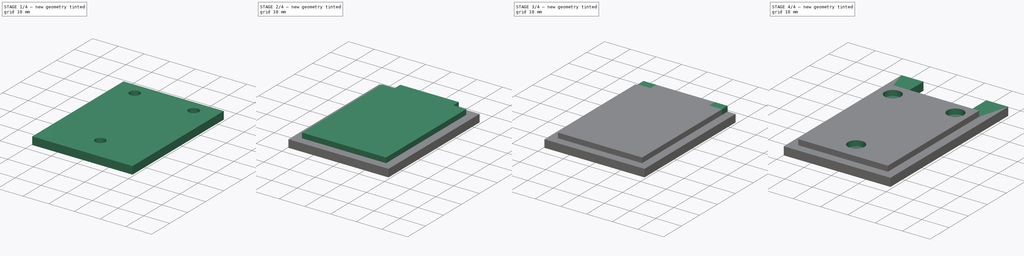
[diagram: build sequence overview — one tinted view per stage of 4, left to right]
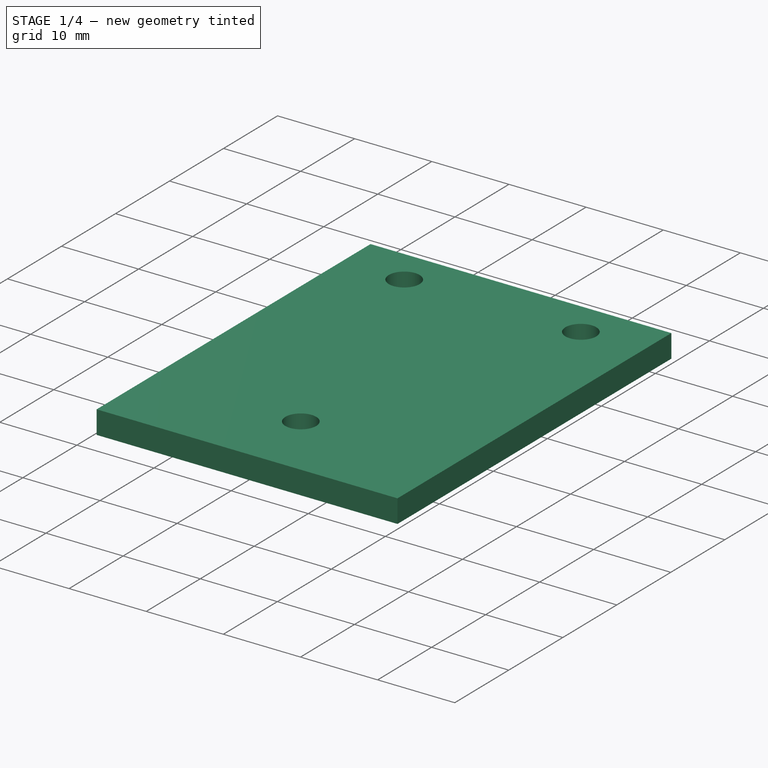
[diagram: stage 1 of 4 — iso view after this stage's code; geometry added in this stage tinted green]
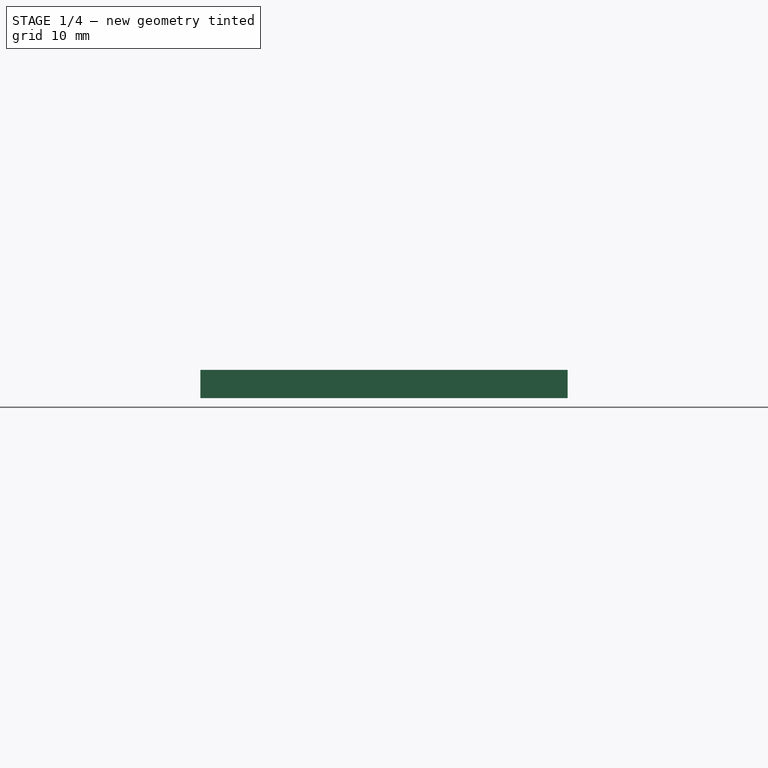
[diagram: stage 1 of 4 — front view after this stage's code; geometry added in this stage tinted green]
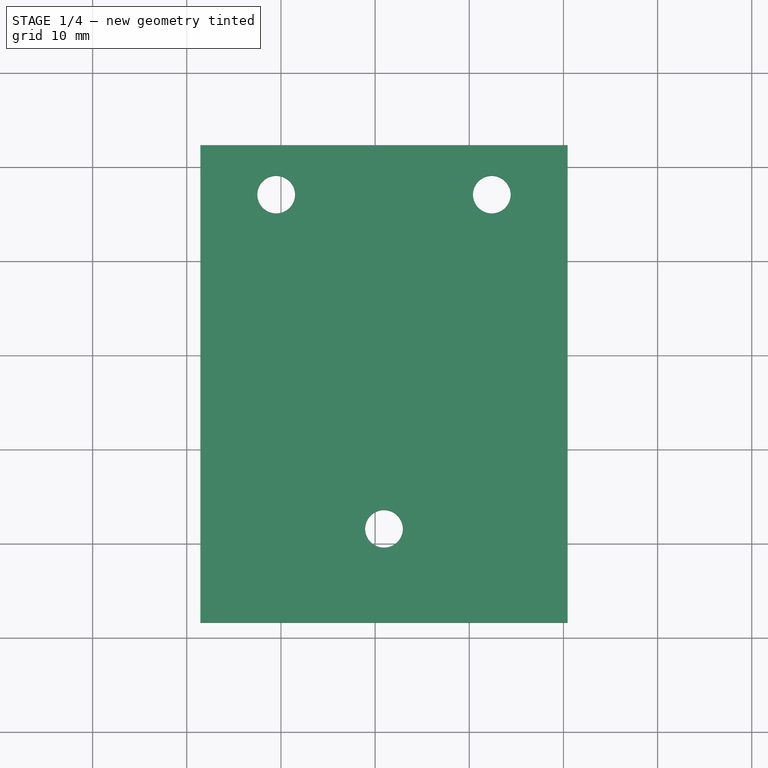
[diagram: stage 1 of 4 — top view after this stage's code; geometry added in this stage tinted green]
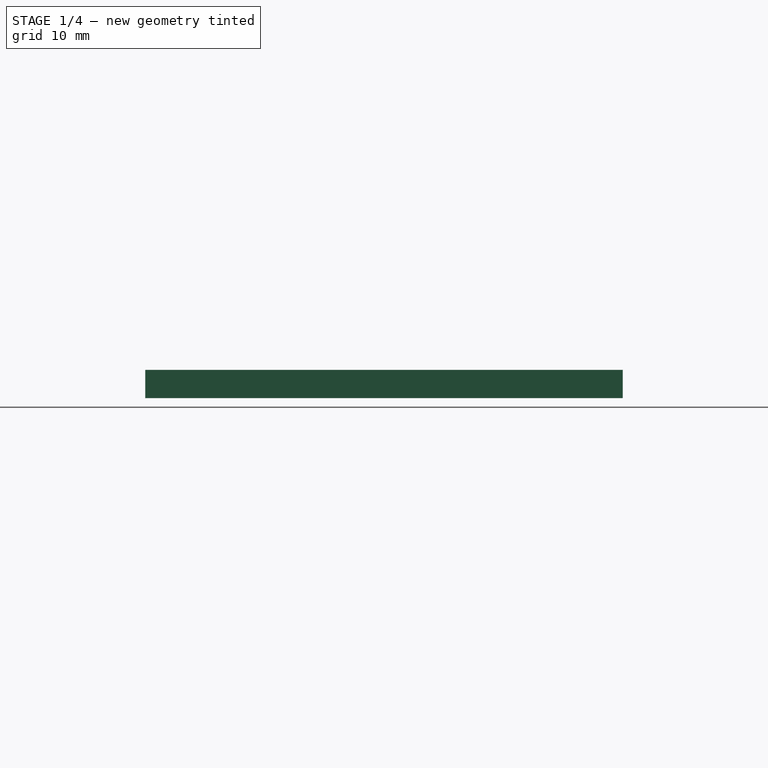
[diagram: stage 1 of 4 — right view after this stage's code; geometry added in this stage tinted green]
FCSTD DOCUMENT  (FreeCAD 0.18.4R)
Label: 12v_stepper_case_lid
License: All rights reserved
LicenseURL: http://en.wikipedia.org/wiki/All_rights_reserved
objects: Sketcher::SketchObject×7, PartDesign::Pad×6, PartDesign::Pocket×6, App::MeasureDistance×4, Part::Part2DObjectPython×1, PartDesign::Body×1
note: 33 computed .brp shape members not serialized (recipe doc carries the construction recipe); baked Part::Feature solids carry a one-line shape summary decoded from their .brp

FEATURE [Sketcher::SketchObject] Sketch
  MapMode = 5
  Support = -> [XY_Plane]
  sketch-geometry (4):
    g0: LineSegment StartX=-8.55599 StartY=-8.38801 StartZ=0 EndX=30.444 EndY=-8.38801 EndZ=0
    g1: LineSegment StartX=30.444 StartY=-8.38801 StartZ=0 EndX=30.444 EndY=42.312 EndZ=0
    g2: LineSegment StartX=30.444 StartY=42.312 StartZ=0 EndX=-8.55599 EndY=42.312 EndZ=0
    g3: LineSegment StartX=-8.55599 StartY=42.312 StartZ=0 EndX=-8.55599 EndY=-8.38801 EndZ=0
  constraints (10):
    c: Coincident(g0,g1)
    c: Coincident(g1,g2)
    c: Coincident(g2,g3)
    c: Coincident(g3,g0)
    c: Horizontal(g0)
    c: Horizontal(g2)
    c: Vertical(g1)
    c: Vertical(g3)
    c: Distance(g2) = 39
    c: Distance(g1) = 50.7
FEATURE [PartDesign::Pad] Pad
  Length = 3
  Length2 = 100
  Profile = -> Sketch
  Type = 0
FEATURE [Sketcher::SketchObject] Sketch001
  ExternalGeometry = -> [Pad]
  MapMode = 5
  Placement = pos=(0,0,0) rot=(1,0,0;3.14159rad)
  Support = -> [Pad]
  sketch-geometry (3):
    g0: Circle CenterX=10.944 CenterY=-1.56199 CenterZ=0 NormalX=0 NormalY=0 NormalZ=1 AngleXU=0 Radius=2
    g1: Circle CenterX=22.394 CenterY=-37.062 CenterZ=0 NormalX=0 NormalY=0 NormalZ=1 AngleXU=0 Radius=2
    g2: Circle CenterX=-0.505992 CenterY=-37.062 CenterZ=0 NormalX=0 NormalY=0 NormalZ=1 AngleXU=0 Radius=2
  constraints (10):
    c: Radius(g0) = 2
    c: Radius(g1) = 2
    c: Radius(g2) = 2
    c: Distance(g0,g-3) = 9.95
    c: Distance(g0,g-4) = 19.5
    c: Distance(g1,g-6) = 8.05
    c: Distance(g2,g-4) = 8.05
    c: Distance(g2,g-5) = 5.25
    c: Distance(g1,g-5) = 5.25
    c: Distance(g-3) = 39
FEATURE [PartDesign::Pocket] Pocket
  BaseFeature = -> Pad
  Length = 5
  Length2 = 100
  Profile = -> Sketch001
  Type = 0
FEATURE [Sketcher::SketchObject] Sketch002
  ExternalGeometry = -> [Pocket]
  MapMode = 5
  Placement = pos=(0,0,0) rot=(1,0,0;3.14159rad)
  Support = -> [Pocket]
  sketch-geometry (3):
    g0: Circle CenterX=22.394 CenterY=-37.062 CenterZ=0 NormalX=0 NormalY=0 NormalZ=1 AngleXU=0 Radius=3
    g1: Circle CenterX=-0.505992 CenterY=-37.062 CenterZ=0 NormalX=0 NormalY=0 NormalZ=1 AngleXU=0 Radius=3
    g2: Circle CenterX=10.9445 CenterY=-1.56242 CenterZ=0 NormalX=0 NormalY=0 NormalZ=1 AngleXU=0 Radius=3
  constraints (3):
    c: Radius(g2) = 3
    c: Radius(g0) = 3
    c: Radius(g1) = 3
FEATURE [PartDesign::Pocket] Pocket001
  BaseFeature = -> Pocket
  Length = 1
  Length2 = 100
  Profile = -> Sketch002
  Type = 0
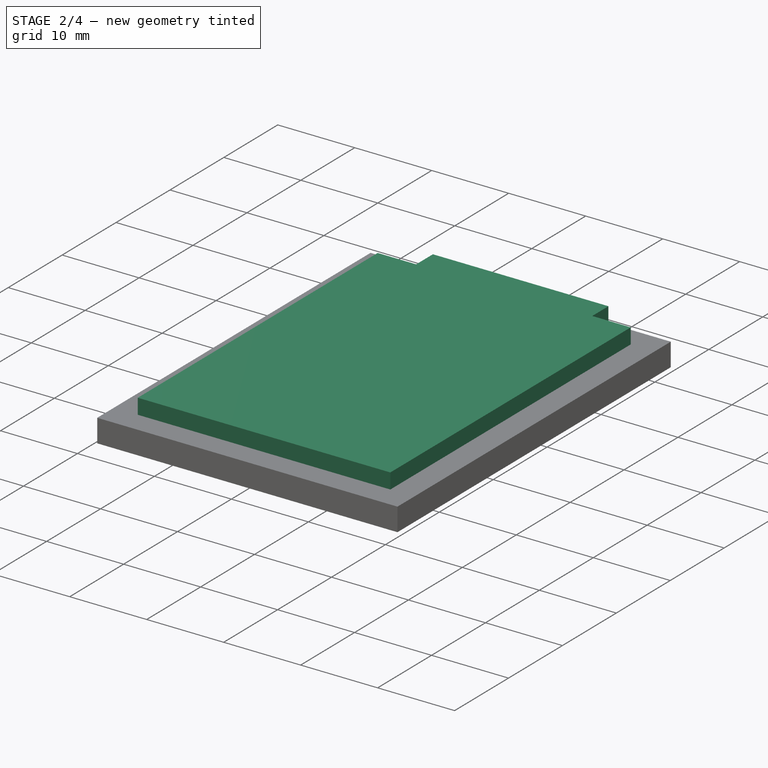
[diagram: stage 2 of 4 — iso view after this stage's code; geometry added in this stage tinted green]
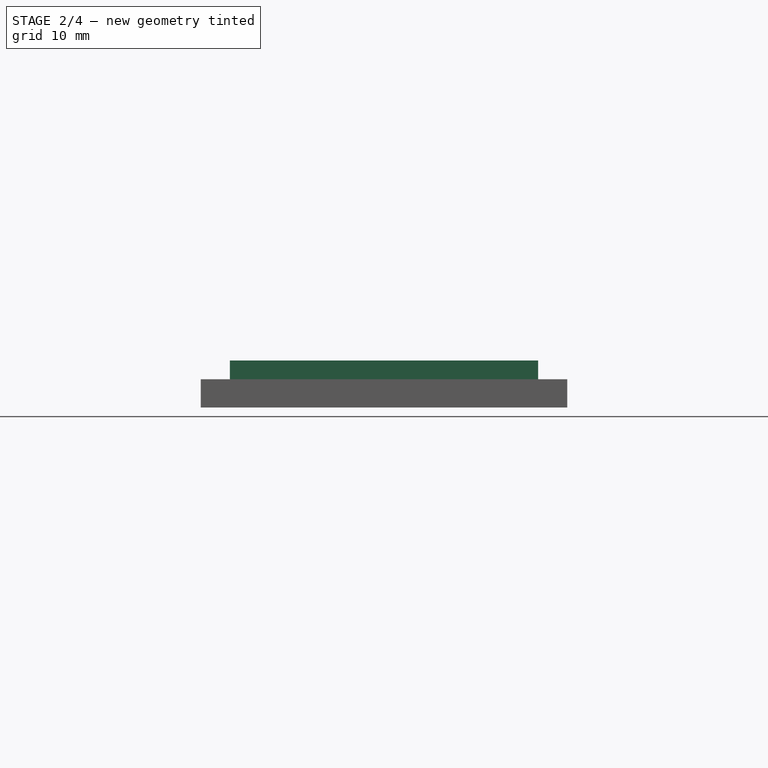
[diagram: stage 2 of 4 — front view after this stage's code; geometry added in this stage tinted green]
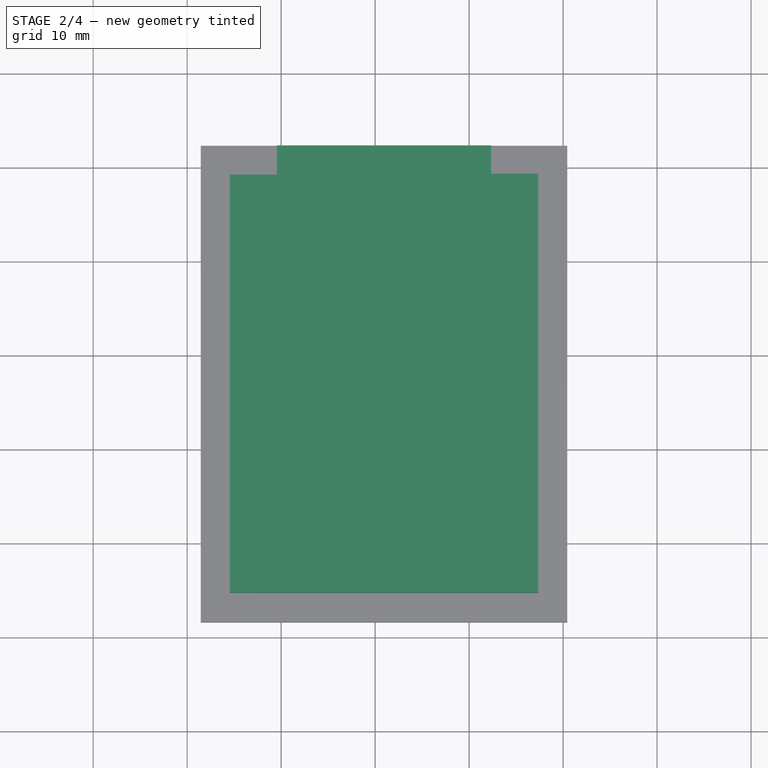
[diagram: stage 2 of 4 — top view after this stage's code; geometry added in this stage tinted green]
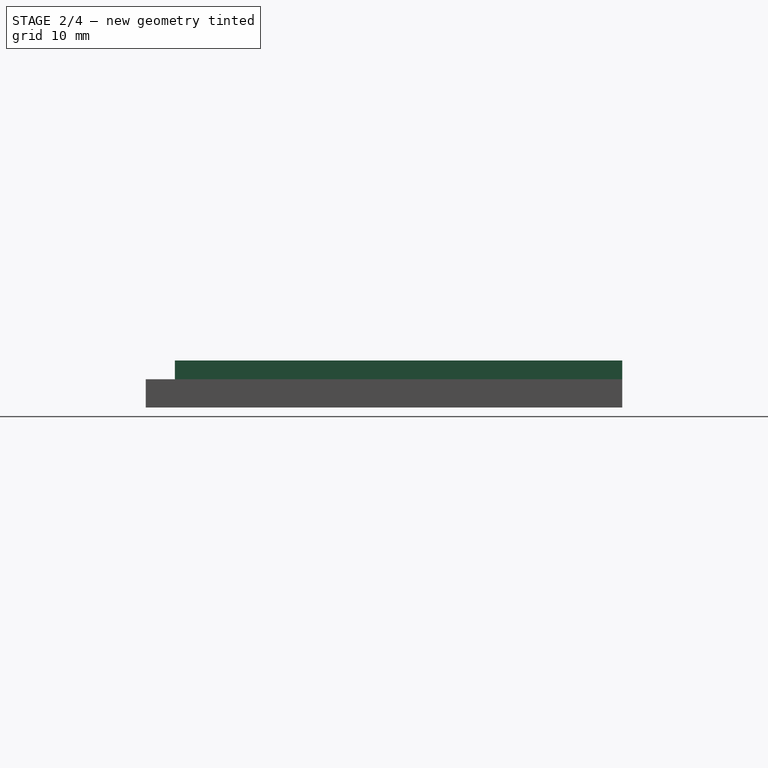
[diagram: stage 2 of 4 — right view after this stage's code; geometry added in this stage tinted green]
FEATURE [Sketcher::SketchObject] Sketch003
  ExternalGeometry = -> [Pocket001]
  MapMode = 5
  Placement = pos=(0,0,3) rot=(0,0,1;0rad)
  Support = -> [Pocket001]
  sketch-geometry (4):
    g0: LineSegment StartX=-0.455992 StartY=42.312 StartZ=0 EndX=22.344 EndY=42.312 EndZ=0
    g1: LineSegment StartX=22.344 StartY=42.312 StartZ=0 EndX=22.344 EndY=39.312 EndZ=0
    g2: LineSegment StartX=22.344 StartY=39.312 StartZ=0 EndX=-0.455992 EndY=39.312 EndZ=0
    g3: LineSegment StartX=-0.455992 StartY=39.312 StartZ=0 EndX=-0.455992 EndY=42.312 EndZ=0
  constraints (13):
    c: Coincident(g0,g1)
    c: Coincident(g1,g2)
    c: Coincident(g2,g3)
    c: Coincident(g3,g0)
    c: Horizontal(g0)
    c: Horizontal(g2)
    c: Vertical(g1)
    c: Vertical(g3)
    c: Distance(g1) = 3
    c: Distance(g0) = 22.8
    c: Distance(g-3) = 39
    c: Distance(g1,g-3) = 3
    c: Distance(g0,g-4) = 8.1
FEATURE [PartDesign::Pad] Pad001
  BaseFeature = -> Pocket001
  Length = 2
  Length2 = 100
  Profile = -> Sketch003
  Type = 0
FEATURE [Sketcher::SketchObject] Sketch004
  ExternalGeometry = -> [Pad001]
  MapMode = 5
  Placement = pos=(0,0,3) rot=(0,0,1;0rad)
  Support = -> [Pad001]
  sketch-geometry (4):
    g0: LineSegment StartX=-5.45599 StartY=39.312 StartZ=0 EndX=27.344 EndY=39.312 EndZ=0
    g1: LineSegment StartX=27.344 StartY=39.312 StartZ=0 EndX=27.344 EndY=-5.28801 EndZ=0
    g2: LineSegment StartX=27.344 StartY=-5.28801 StartZ=0 EndX=-5.45599 EndY=-5.28801 EndZ=0
    g3: LineSegment StartX=-5.45599 StartY=-5.28801 StartZ=0 EndX=-5.45599 EndY=39.312 EndZ=0
  constraints (12):
    c: Coincident(g0,g1)
    c: Coincident(g1,g2)
    c: Coincident(g2,g3)
    c: Coincident(g3,g0)
    c: Horizontal(g0)
    c: Horizontal(g2)
    c: Vertical(g1)
    c: Vertical(g3)
    c: Distance(g0,g-3) = 3.1
    c: Distance(g0,g-6) = 3.1
    c: Distance(g0,g-5) = 3
    c: Distance(g1,g-7) = 3.1
FEATURE [PartDesign::Pad] Pad002
  BaseFeature = -> Pad001
  Length = 2
  Length2 = 100
  Profile = -> Sketch004
  Type = 0
FEATURE [PartDesign::Pocket] Pocket002
  BaseFeature = -> Pad002
  Length = 0.1
  Length2 = 100
  Profile = -> Pad002 [Face11]
  Type = 0
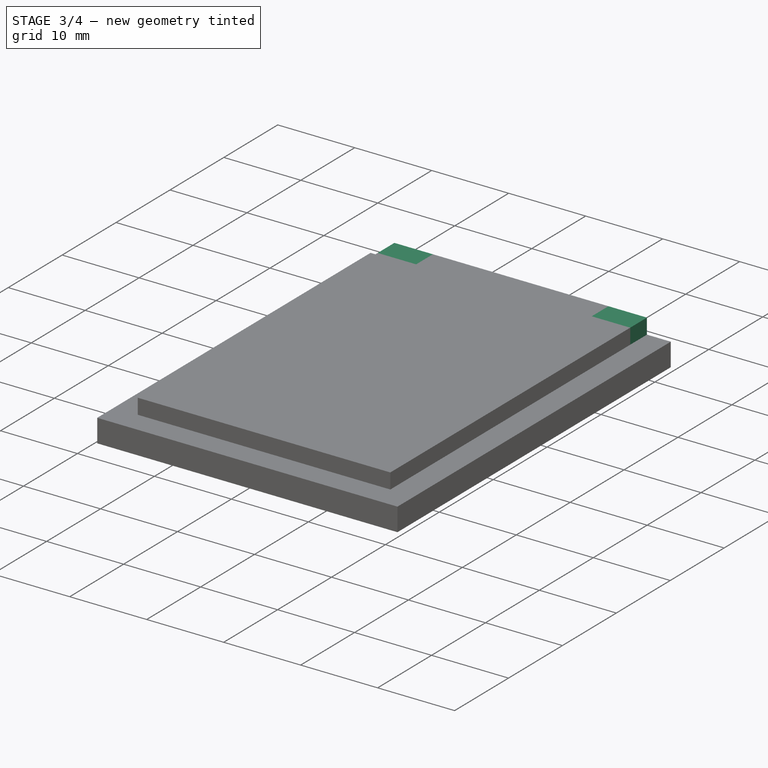
[diagram: stage 3 of 4 — iso view after this stage's code; geometry added in this stage tinted green]
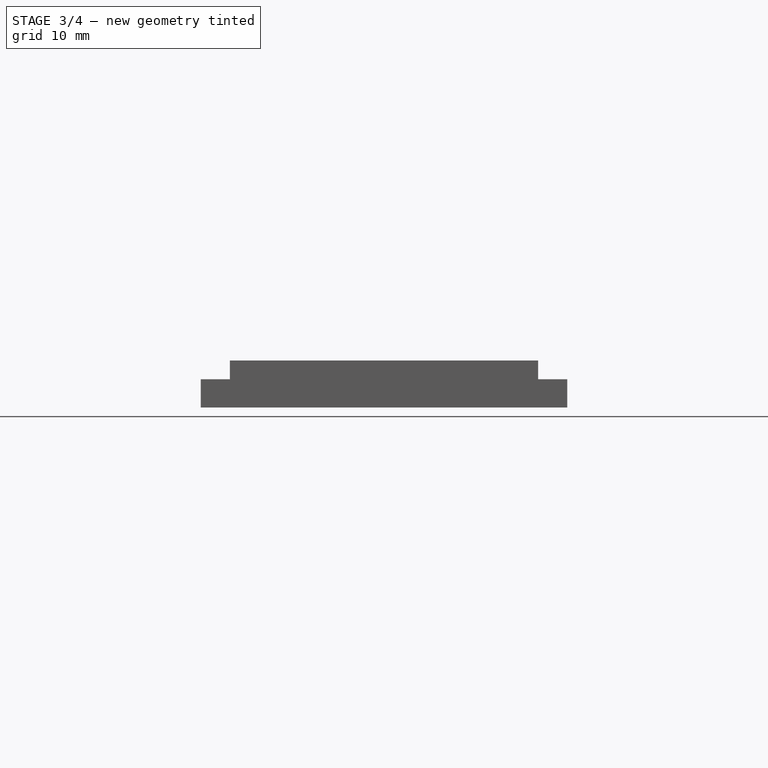
[diagram: stage 3 of 4 — front view after this stage's code; geometry added in this stage tinted green]
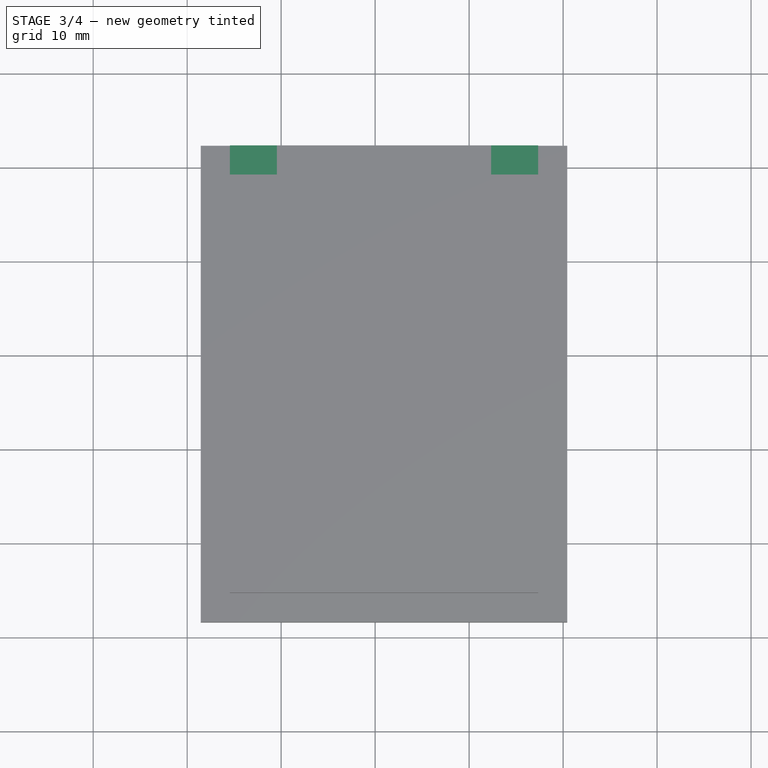
[diagram: stage 3 of 4 — top view after this stage's code; geometry added in this stage tinted green]
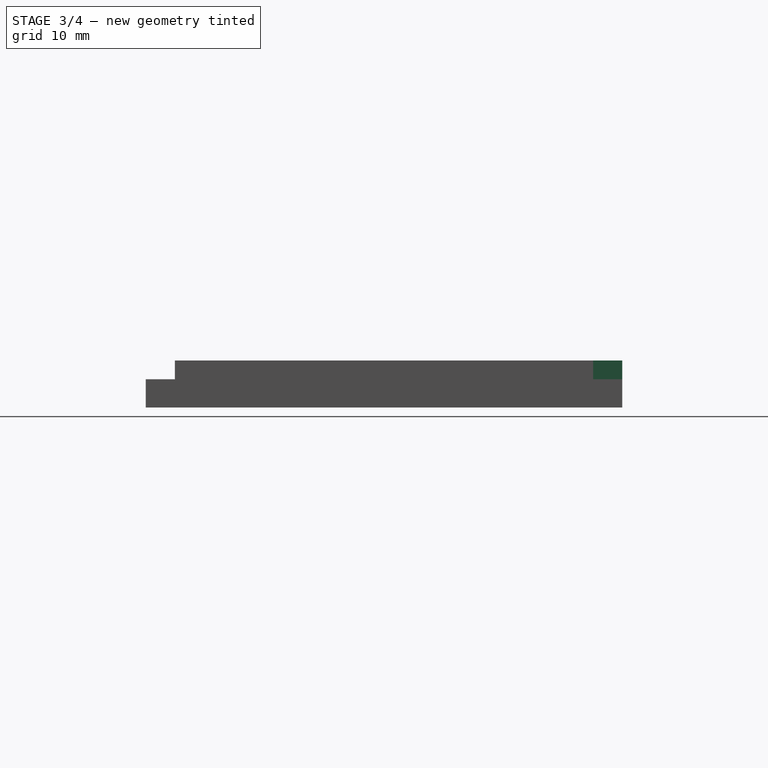
[diagram: stage 3 of 4 — right view after this stage's code; geometry added in this stage tinted green]
FEATURE [PartDesign::Pocket] Pocket003
  BaseFeature = -> Pocket002
  Length = 0.1
  Length2 = 100
  Profile = -> Pocket002 [Face15]
  Refine = true
  Type = 0
FEATURE [Sketcher::SketchObject] Sketch005
  ExternalGeometry = -> [Pocket003]
  MapMode = 5
  Placement = pos=(0,0,3) rot=(1,0,0;3.14159rad)
  Support = -> [Pocket003]
  sketch-geometry (3):
    g0: Circle CenterX=10.944 CenterY=-1.56199 CenterZ=0 NormalX=0 NormalY=0 NormalZ=1 AngleXU=0 Radius=3
    g1: Circle CenterX=22.394 CenterY=-37.062 CenterZ=0 NormalX=0 NormalY=0 NormalZ=1 AngleXU=0 Radius=3
    g2: Circle CenterX=-0.505992 CenterY=-37.062 CenterZ=0 NormalX=0 NormalY=0 NormalZ=1 AngleXU=0 Radius=3
  constraints (3):
    c: Radius(g2) = 3
    c: Radius(g1) = 3
    c: Radius(g0) = 3
FEATURE [PartDesign::Pad] Pad003
  BaseFeature = -> Pocket003
  Length = 3.1
  Length2 = 100
  Profile = -> Pocket003 [Face22]
  Type = 0
FEATURE [PartDesign::Pad] Pad004
  BaseFeature = -> Pad003
  Length = 3.1
  Length2 = 100
  Profile = -> Pad003 [Face11]
  Type = 0
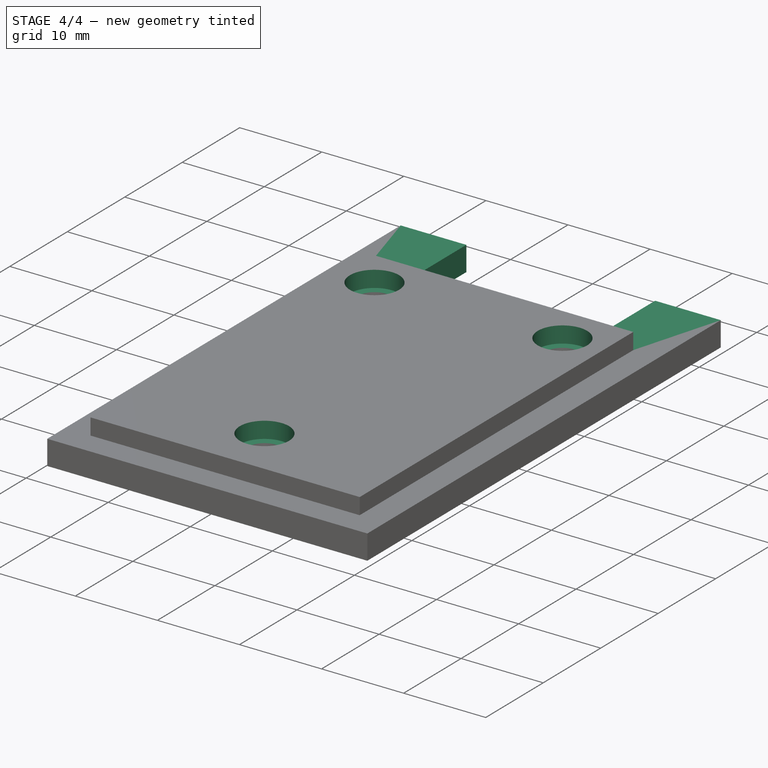
[diagram: stage 4 of 4 — iso view after this stage's code; geometry added in this stage tinted green]
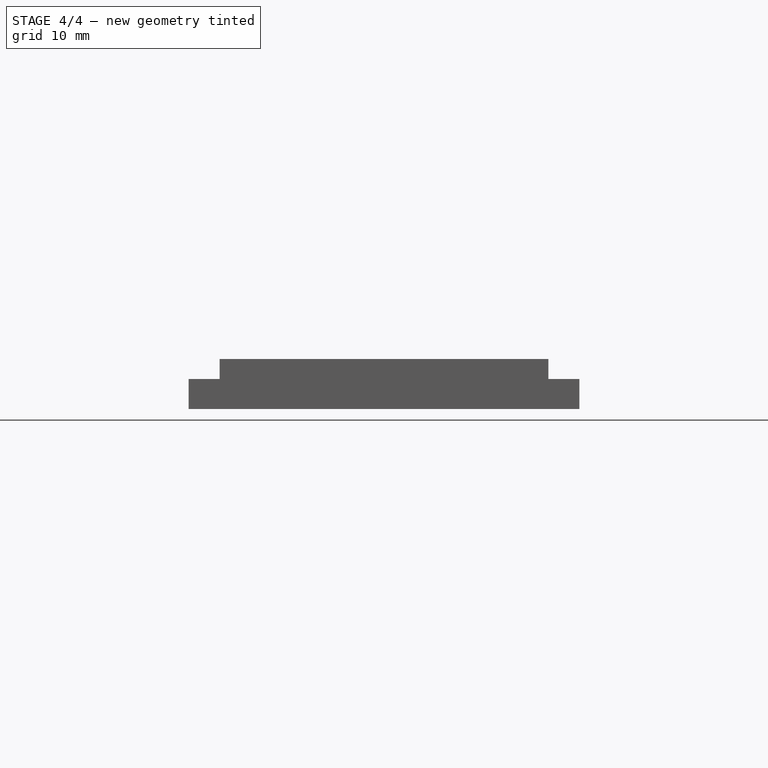
[diagram: stage 4 of 4 — front view after this stage's code; geometry added in this stage tinted green]
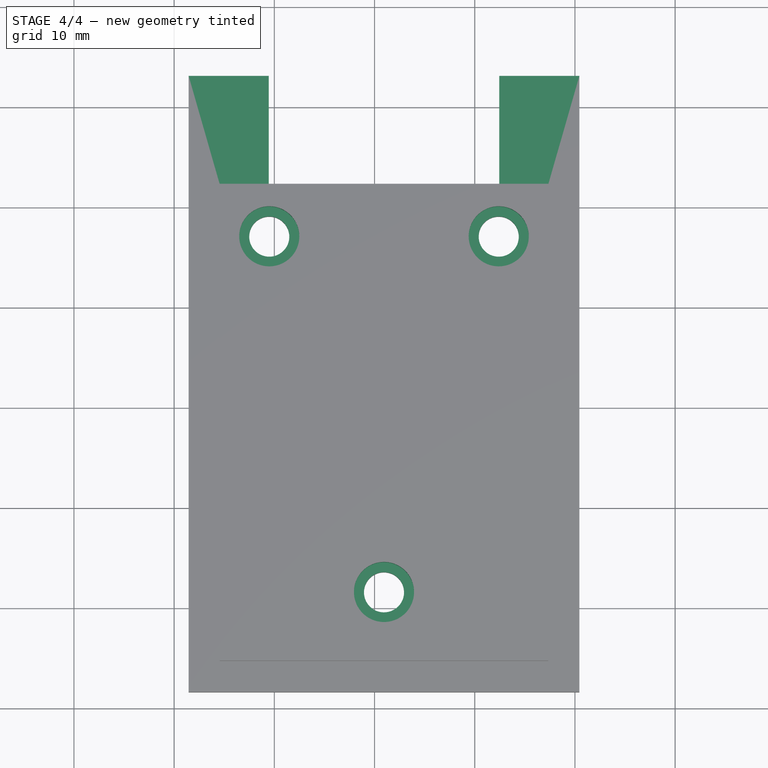
[diagram: stage 4 of 4 — top view after this stage's code; geometry added in this stage tinted green]
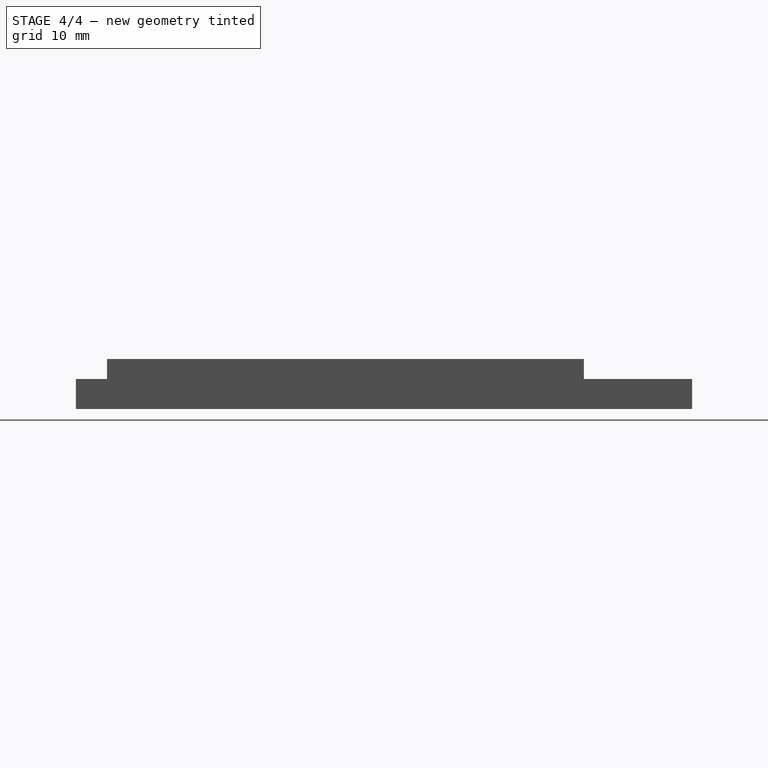
[diagram: stage 4 of 4 — right view after this stage's code; geometry added in this stage tinted green]
FEATURE [PartDesign::Pocket] Pocket004
  BaseFeature = -> Pad004
  Length = 5
  Length2 = 100
  Profile = -> Sketch005
  Refine = true
  Type = 0
FEATURE [App::MeasureDistance] Distance  label="Distance: 50.70 mm"
  Distance = 50.7
  P1 = (30.444,-8.38801,0)
  P2 = (30.444,42.312,0)
FEATURE [Sketcher::SketchObject] Sketch006
  ExternalGeometry = -> [Pocket004]
  MapMode = 5
  Placement = pos=(0,42.312,0) rot=(0,0.707107,0.707107;3.14159rad)
  Support = -> [Pocket004]
  sketch-geometry (8):
    g0: LineSegment StartX=-22.444 StartY=0 StartZ=0 EndX=-30.444 EndY=0 EndZ=0
    g1: LineSegment StartX=-30.444 StartY=0 StartZ=0 EndX=-30.444 EndY=3 EndZ=0
    g2: LineSegment StartX=-30.444 StartY=3 StartZ=0 EndX=-22.444 EndY=3 EndZ=0
    g3: LineSegment StartX=-22.444 StartY=3 StartZ=0 EndX=-22.444 EndY=0 EndZ=0
    g4: LineSegment StartX=0.555992 StartY=3 StartZ=0 EndX=8.55599 EndY=3 EndZ=0
    g5: LineSegment StartX=8.55599 StartY=3 StartZ=0 EndX=8.55599 EndY=0 EndZ=0
    g6: LineSegment StartX=8.55599 StartY=0 StartZ=0 EndX=0.555992 EndY=0 EndZ=0
    g7: LineSegment StartX=0.555992 StartY=0 StartZ=0 EndX=0.555992 EndY=3 EndZ=0
  constraints (24):
    c: Coincident(g0,g1)
    c: Coincident(g1,g2)
    c: Coincident(g2,g3)
    c: Coincident(g3,g0)
    c: Horizontal(g0)
    c: Horizontal(g2)
    c: Vertical(g1)
    c: Vertical(g3)
    c: Coincident(g4,g5)
    c: Coincident(g5,g6)
    c: Coincident(g6,g7)
    c: Coincident(g7,g4)
    c: Horizontal(g4)
    c: Horizontal(g6)
    c: Vertical(g5)
    c: Vertical(g7)
    c: Distance(g4) = 8
    c: Distance(g7) = 3
    c: Distance(g3) = 3
    c: Distance(g2) = 8
    c: Distance(g2,g-3) = 3
    c: Distance(g4,g-3) = 3
    c: Distance(g4,g-5) = 8
    c: Distance(g2,g-6) = 8
FEATURE [PartDesign::Pad] Pad005
  BaseFeature = -> Pocket004
  Length = 10.8
  Length2 = 100
  Profile = -> Sketch006
  Refine = true
  Type = 0
FEATURE [App::MeasureDistance] Distance001  label="Distance: 61.50 mm"
  Distance = 61.5
  P1 = (30.444,53.112,0.029002)
  P2 = (30.444,-8.38801,0.00884001)
FEATURE [App::MeasureDistance] Distance002  label="Distance: 32.75 mm"
  Distance = 32.7489
  P1 = (-5.4049,42.312,5)
  P2 = (27.344,42.312,5)
FEATURE [App::MeasureDistance] Distance003  label="Distance: 47.54 mm"
  Distance = 47.5365
  P1 = (27.344,-5.22454,5)
  P2 = (27.344,42.312,5)
FEATURE [Part::Part2DObjectPython] ShapeString  # Draft 2D object (typed FeaturePython)
  FontFile = <path>
  Placement = pos=(2.25,41.42,0) rot=(1,0,0;3.14159rad)
  Size = 1.2
  String = Vin Vout
  Support = -> [Pad005]
  Tracking = 0
FEATURE [PartDesign::Pocket] Pocket005
  BaseFeature = -> Pad005
  Length = 0.5
  Length2 = 100
  Profile = -> ShapeString
  Type = 0
FEATURE [PartDesign::Body] Body
  Group = -> [Sketch,Pad,Sketch001,Pocket,Sketch002,Pocket001,Sketch003,Pad001,Sketch004,Pad002,Pocket002,Pocket003,Sketch005,Pad003,Pad004,Pocket004,Sketch006,Pad005,ShapeString,Pocket005]
  Origin = -> Origin
  Tip = -> Pocket005
note: 1 file-system path scrubbed to <path> (originals preserved in the JSON sidecar)
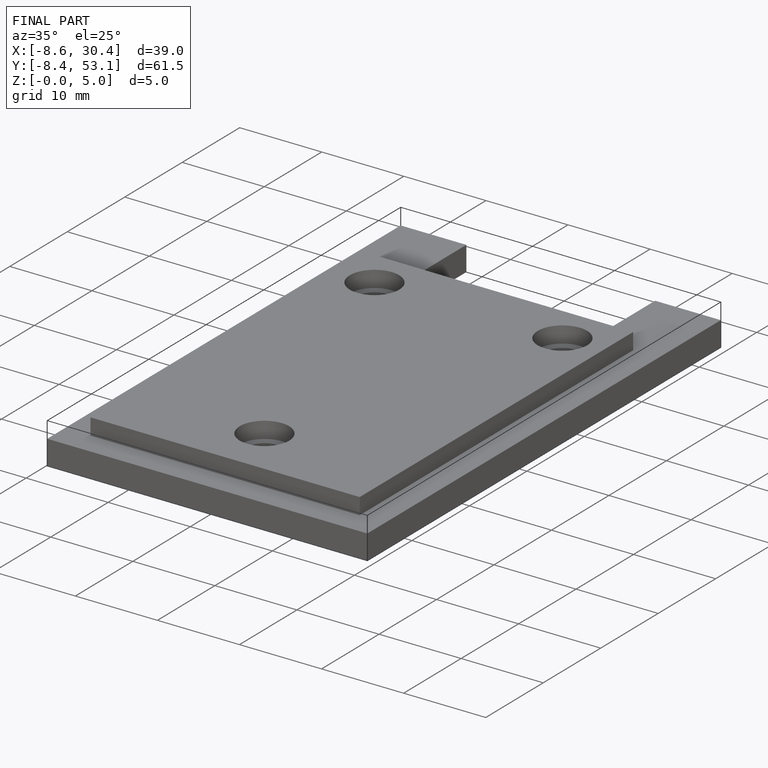
[diagram: finished part — iso view with bounding-box wireframe]
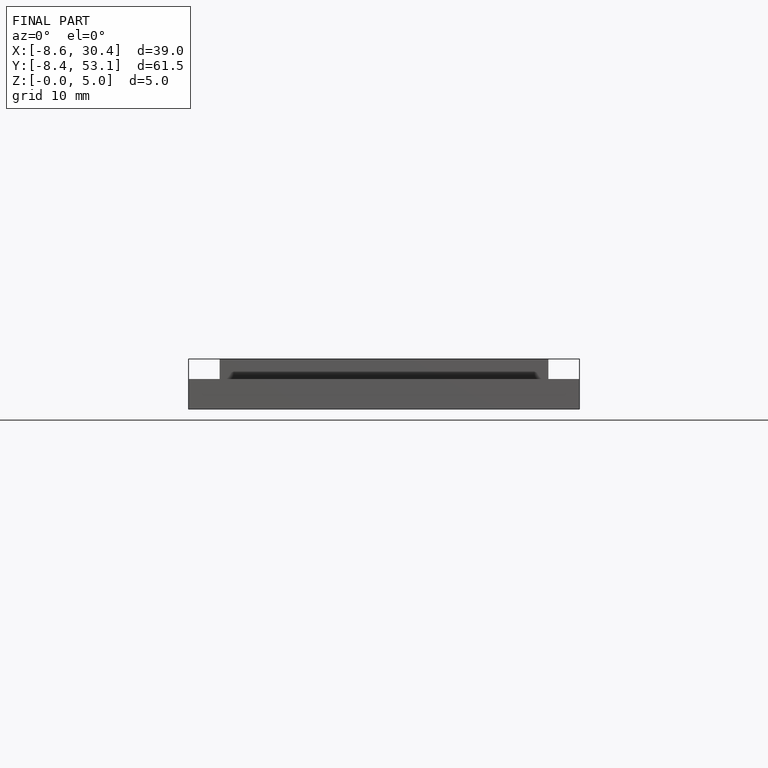
[diagram: finished part — front view with bounding-box wireframe]
